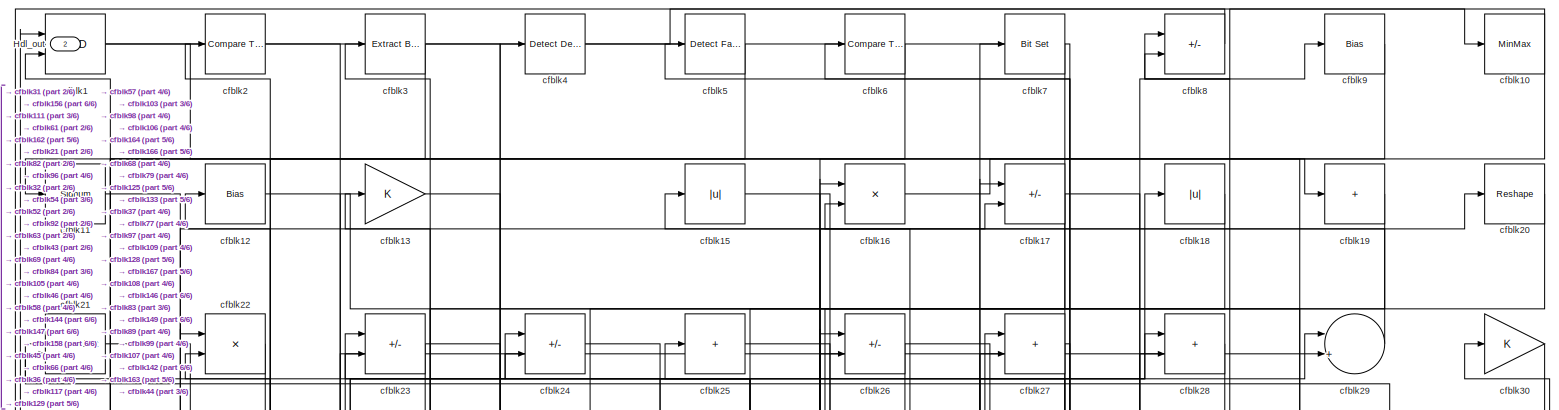
[diagram: root canvas - part 1/6, full width, top band]
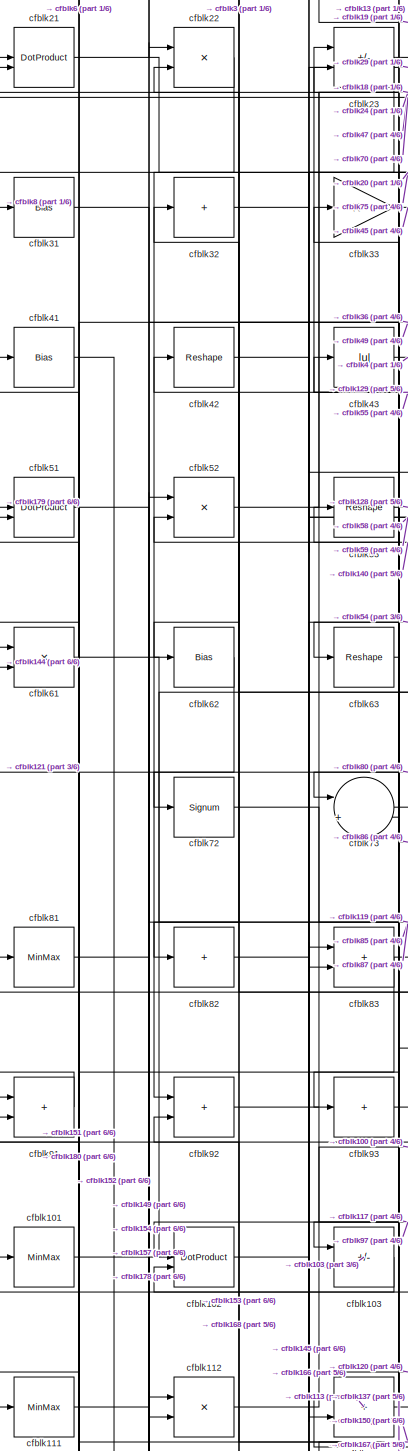
[diagram: root canvas - part 2/6, middle left region]
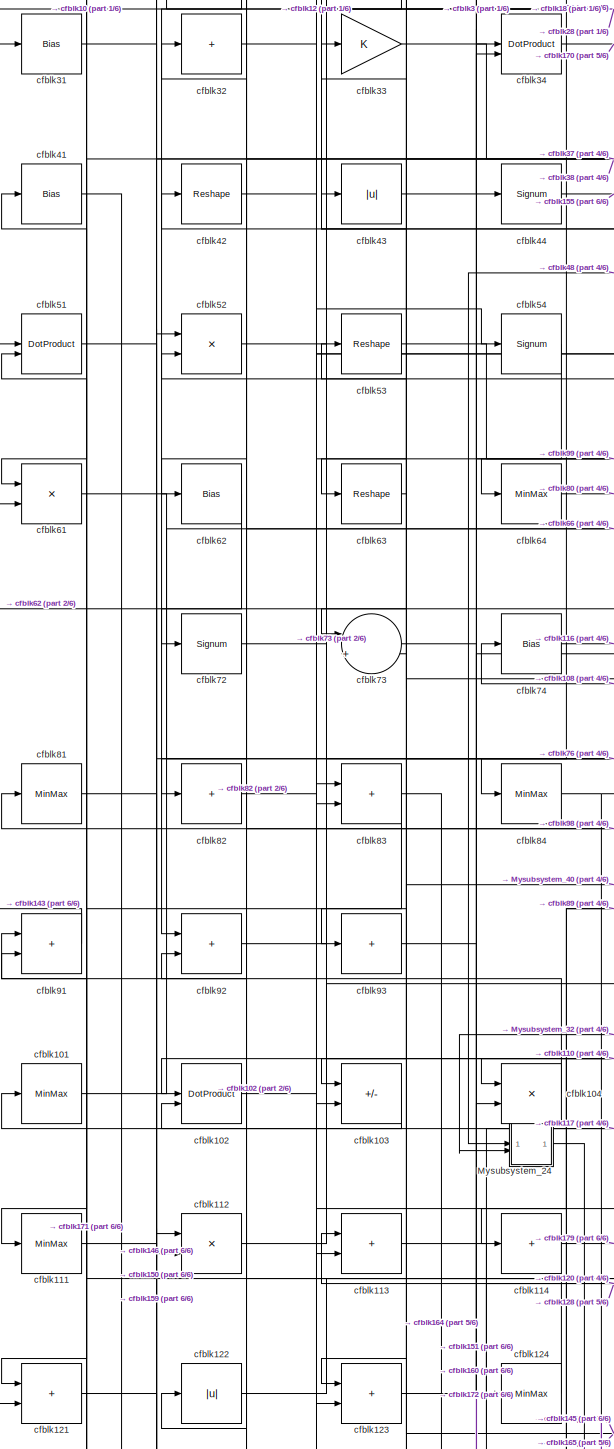
[diagram: root canvas - part 3/6, middle left region]
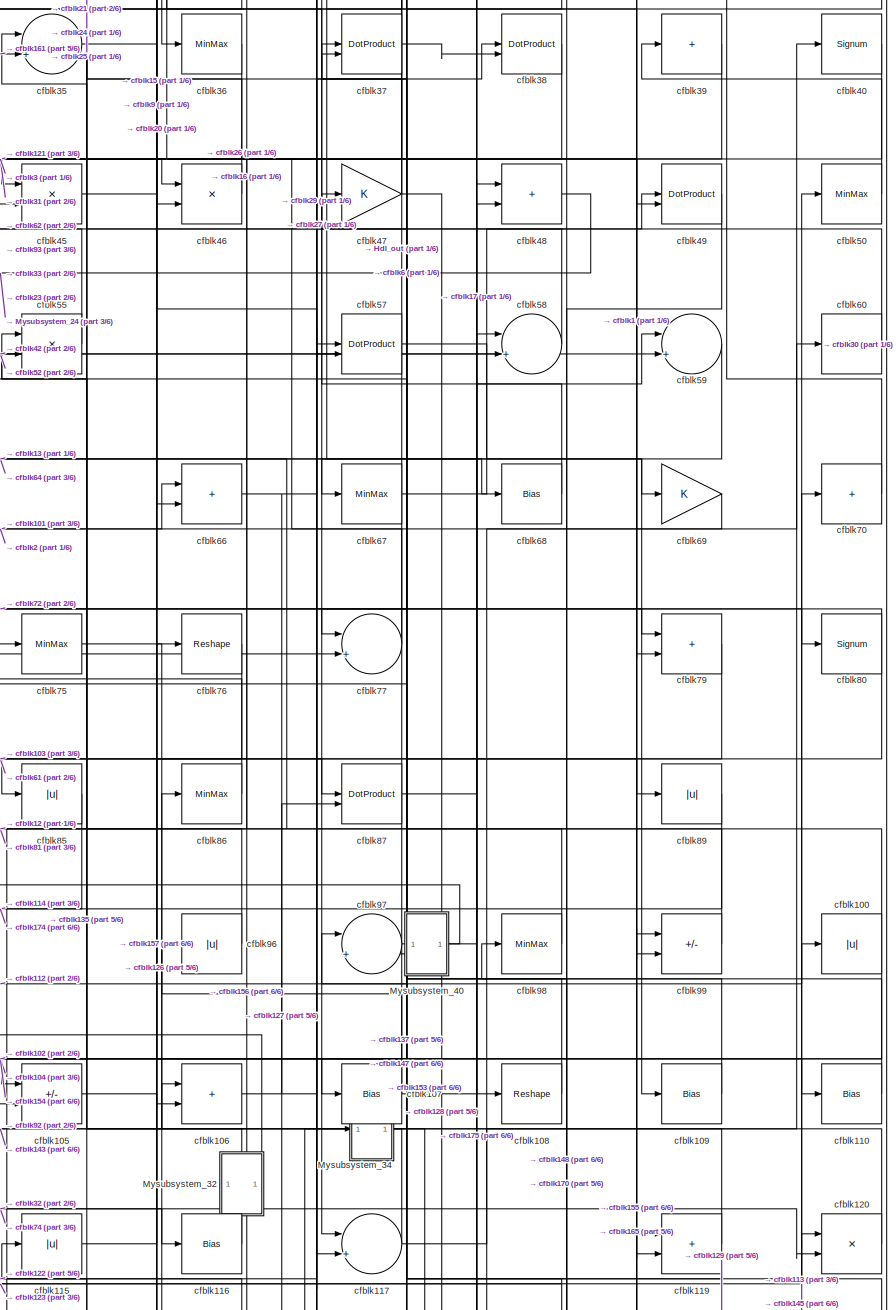
[diagram: root canvas - part 4/6, middle right region]
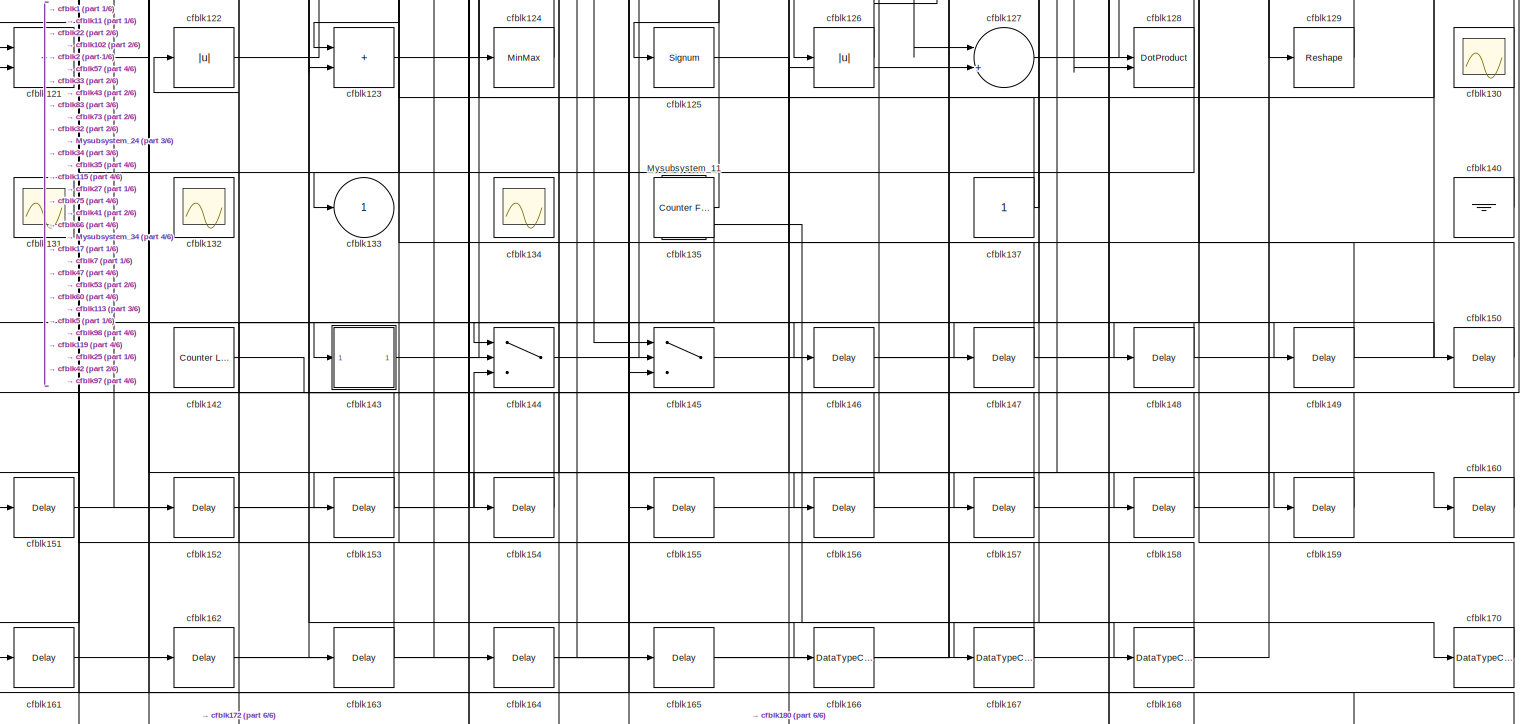
[diagram: root canvas - part 5/6, full width, bottom band]
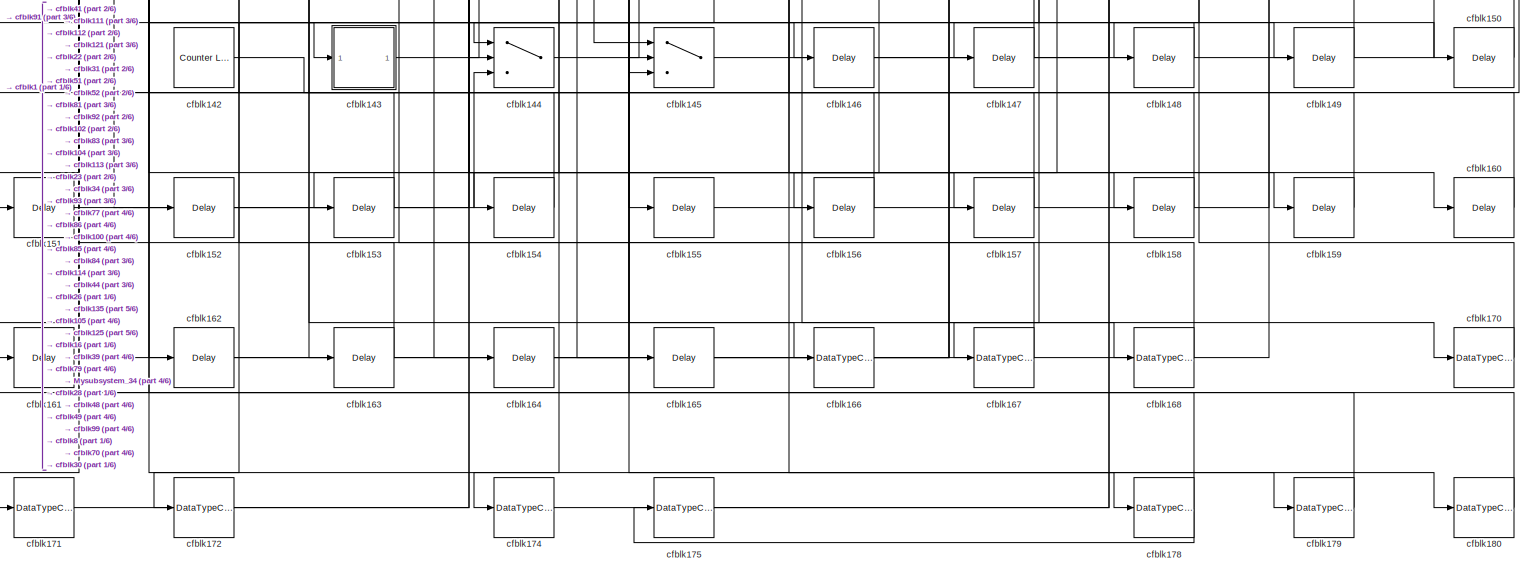
[diagram: root canvas - part 6/6, full width, bottom band]
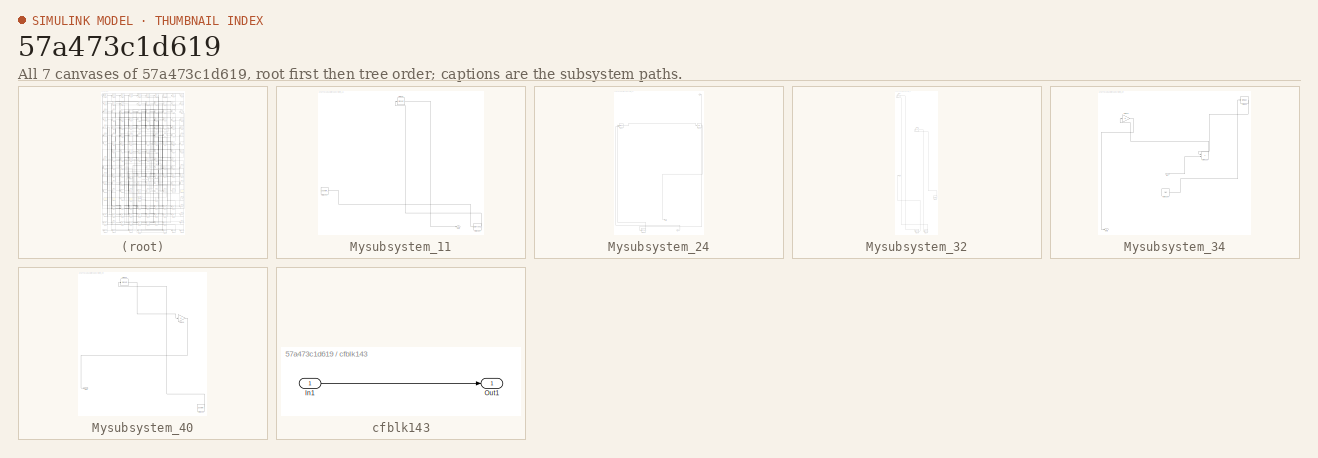
[diagram: thumbnail index - all 7 canvases of the model, root first then tree order]
MODEL slx_57a473c1d619
KIND model
CONFIG AbsTol = auto
CONFIG EnableMultiTasking = off
CONFIG FixedStep = auto
CONFIG MaxStep = auto
CONFIG MinStep = auto
CONFIG RelTol = 1e-3
CONFIG SampleTimeConstraint = Unconstrained
CONFIG SolverName = VariableStepAuto
CONFIG StartTime = 0.0
CONFIG StopTime = 10.0
BLOCK [Outport] Hdl_out
  OutDataTypeStr = uint8
  Port = 2
BLOCK [SubSystem] Mysubsystem_11
  RTWFcnName = Mysubsystem_11
  RTWFcnNameOpts = User specified
  RTWFileNameOpts = Use function name
  RTWSystemCode = Reusable function
  TreatAsAtomicUnit = on
BLOCK [Outport] Mysubsystem_11/Out1
BLOCK [Reference] Mysubsystem_11/cfblk141  REF=hdlsllib/Sources/Counter
Free-Running
  SourceBlock = hdlsllib/Sources/Counter\nFree-Running
  SourceType = Counter Free-Running
BLOCK [DataTypeConversion] Mysubsystem_11/cfblk169
  OutDataTypeStr = uint8
  RndMeth = Floor
  SaturateOnIntegerOverflow = off
BLOCK [Signum] Mysubsystem_11/cfblk95
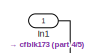
[diagram: Mysubsystem_24 - part 1/5, top right region]
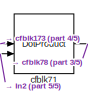
[diagram: Mysubsystem_24 - part 2/5, top left region]
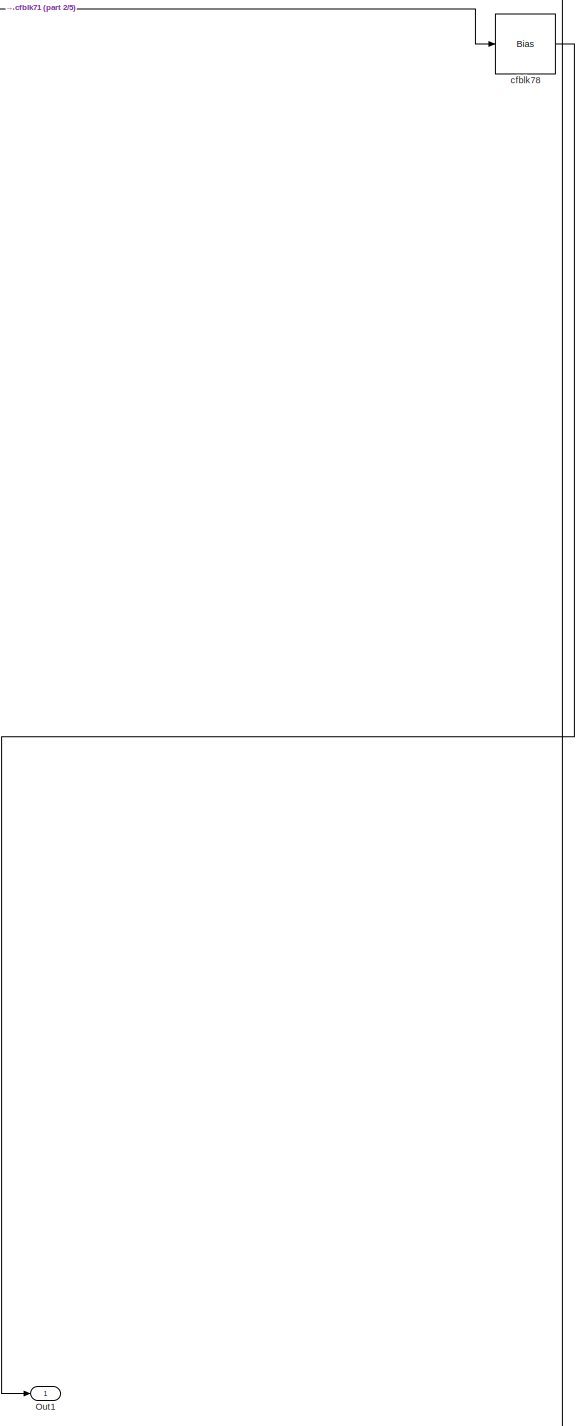
[diagram: Mysubsystem_24 - part 3/5, middle right region]
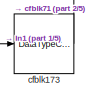
[diagram: Mysubsystem_24 - part 4/5, bottom left region]
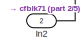
[diagram: Mysubsystem_24 - part 5/5, bottom right region]
BLOCK [SubSystem] Mysubsystem_24
  RTWFcnName = Mysubsystem_24
  RTWFcnNameOpts = User specified
  RTWFileNameOpts = Use function name
  RTWSystemCode = Reusable function
  TreatAsAtomicUnit = on
BLOCK [Inport] Mysubsystem_24/In1
BLOCK [Inport] Mysubsystem_24/In2
  Port = 2
BLOCK [Outport] Mysubsystem_24/Out1
BLOCK [DataTypeConversion] Mysubsystem_24/cfblk173
  OutDataTypeStr = uint8
  RndMeth = Floor
  SaturateOnIntegerOverflow = off
BLOCK [DotProduct] Mysubsystem_24/cfblk71
  OutDataTypeStr = Inherit: Inherit via internal rule
BLOCK [Bias] Mysubsystem_24/cfblk78
  Bias = 0.0
  SaturateOnIntegerOverflow = off
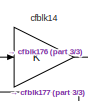
[diagram: Mysubsystem_32 - part 1/3, top left region]
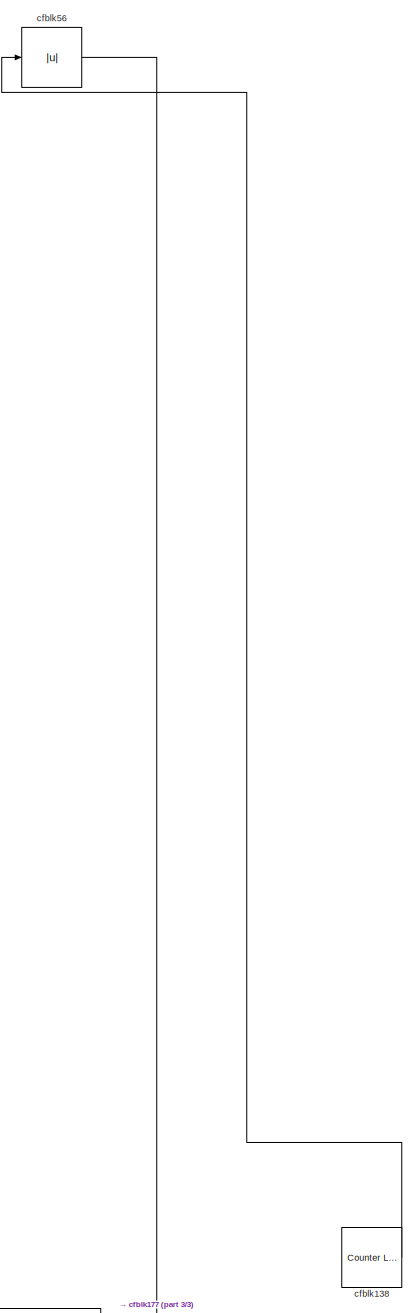
[diagram: Mysubsystem_32 - part 2/3, middle right region]
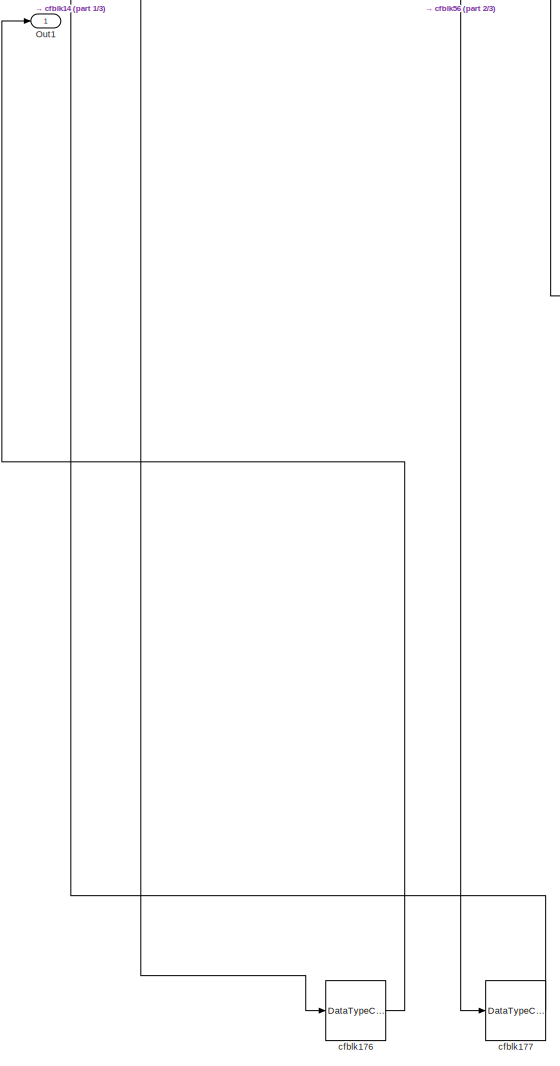
[diagram: Mysubsystem_32 - part 3/3, full width, bottom band]
BLOCK [SubSystem] Mysubsystem_32
  RTWFcnName = Mysubsystem_32
  RTWFcnNameOpts = User specified
  RTWFileNameOpts = Use function name
  RTWSystemCode = Reusable function
  TreatAsAtomicUnit = on
BLOCK [Outport] Mysubsystem_32/Out1
BLOCK [Reference] Mysubsystem_32/cfblk138  REF=hdlsllib/Sources/Counter
Limited
  SourceBlock = hdlsllib/Sources/Counter\nLimited
  SourceType = Counter Limited
BLOCK [Gain] Mysubsystem_32/cfblk14
BLOCK [DataTypeConversion] Mysubsystem_32/cfblk176
  OutDataTypeStr = uint8
  RndMeth = Floor
  SaturateOnIntegerOverflow = off
BLOCK [DataTypeConversion] Mysubsystem_32/cfblk177
  OutDataTypeStr = uint8
  RndMeth = Floor
  SaturateOnIntegerOverflow = off
BLOCK [Abs] Mysubsystem_32/cfblk56
  SaturateOnIntegerOverflow = off
BLOCK [SubSystem] Mysubsystem_34
  RTWFcnName = Mysubsystem_34
  RTWFcnNameOpts = User specified
  RTWFileNameOpts = Use function name
  RTWSystemCode = Reusable function
  TreatAsAtomicUnit = on
BLOCK [Inport] Mysubsystem_34/In1
BLOCK [Outport] Mysubsystem_34/Out1
BLOCK [Sum] Mysubsystem_34/cfblk118
  IconShape = rectangular
BLOCK [Ground] Mysubsystem_34/cfblk136
BLOCK [MinMax] Mysubsystem_34/cfblk90
BLOCK [Gain] Mysubsystem_34/cfblk94
BLOCK [SubSystem] Mysubsystem_40
  RTWFcnName = Mysubsystem_40
  RTWFcnNameOpts = User specified
  RTWFileNameOpts = Use function name
  RTWSystemCode = Reusable function
  TreatAsAtomicUnit = on
BLOCK [Outport] Mysubsystem_40/Out1
BLOCK [Reference] Mysubsystem_40/cfblk139  REF=hdlsllib/Sources/Counter
Free-Running
  SourceBlock = hdlsllib/Sources/Counter\nFree-Running
  SourceType = Counter Free-Running
BLOCK [Signum] Mysubsystem_40/cfblk65
BLOCK [Gain] Mysubsystem_40/cfblk88
BLOCK [Logic] cfblk1
  AllPortsSameDT = off
  OutDataTypeStr = boolean
BLOCK [MinMax] cfblk10
  OutDataTypeStr = uint8
BLOCK [Abs] cfblk100
  OutDataTypeStr = uint8
  SaturateOnIntegerOverflow = off
BLOCK [MinMax] cfblk101
  OutDataTypeStr = uint8
BLOCK [DotProduct] cfblk102
  OutDataTypeStr = uint8
BLOCK [Sum] cfblk103
  IconShape = rectangular
  Inputs = +-
  OutDataTypeStr = uint8
BLOCK [Product] cfblk104
  Inputs = */
  OutDataTypeStr = uint8
  RndMeth = Zero
  SaturateOnIntegerOverflow = on
BLOCK [Sum] cfblk105
  IconShape = rectangular
  Inputs = +-
  OutDataTypeStr = uint8
BLOCK [Sum] cfblk106
  IconShape = rectangular
  OutDataTypeStr = uint8
BLOCK [Bias] cfblk107
  Bias = 0.0
  SaturateOnIntegerOverflow = off
BLOCK [Reshape] cfblk108
BLOCK [Bias] cfblk109
  Bias = 0.0
  SaturateOnIntegerOverflow = off
BLOCK [Signum] cfblk11
BLOCK [Bias] cfblk110
  Bias = 0.0
  SaturateOnIntegerOverflow = off
BLOCK [MinMax] cfblk111
  OutDataTypeStr = uint8
BLOCK [Product] cfblk112
  Inputs = */
  OutDataTypeStr = uint8
  RndMeth = Zero
  SaturateOnIntegerOverflow = on
BLOCK [Sum] cfblk113
  IconShape = rectangular
  OutDataTypeStr = uint8
BLOCK [Sum] cfblk114
  IconShape = rectangular
  Inputs = +
  OutDataTypeStr = uint8
BLOCK [Abs] cfblk115
  OutDataTypeStr = uint8
  SaturateOnIntegerOverflow = off
BLOCK [Bias] cfblk116
  Bias = 0.0
  SaturateOnIntegerOverflow = off
BLOCK [Sum] cfblk117
  Inputs = |++
  OutDataTypeStr = uint8
BLOCK [Sum] cfblk119
  IconShape = rectangular
  OutDataTypeStr = uint8
BLOCK [Bias] cfblk12
  Bias = 0.0
  SaturateOnIntegerOverflow = off
BLOCK [Product] cfblk120
  Inputs = */
  OutDataTypeStr = uint8
  RndMeth = Zero
  SaturateOnIntegerOverflow = on
BLOCK [Sum] cfblk121
  IconShape = rectangular
  OutDataTypeStr = uint8
BLOCK [Abs] cfblk122
  OutDataTypeStr = uint8
  SaturateOnIntegerOverflow = off
BLOCK [Sum] cfblk123
  IconShape = rectangular
  OutDataTypeStr = uint8
BLOCK [MinMax] cfblk124
  OutDataTypeStr = uint8
BLOCK [Signum] cfblk125
BLOCK [Abs] cfblk126
  OutDataTypeStr = uint8
  SaturateOnIntegerOverflow = off
BLOCK [Sum] cfblk127
  Inputs = |++
  OutDataTypeStr = uint8
BLOCK [DotProduct] cfblk128
  OutDataTypeStr = uint8
BLOCK [Reshape] cfblk129
BLOCK [Gain] cfblk13
  OutDataTypeStr = uint8
BLOCK [Scope] cfblk130
  Floating = on
  NumInputPorts = 1
  ScopeSpecificationString = Simulink.scopes.TimeScopeBlockCfg('CurrentConfiguration', extmgr.ConfigurationSet(extmgr.Configuration('Core','General UI',true,'FigureColor',[0.156862745098039 0.156862745098039 0.156862745098039]),extmgr.Configuration('Core','Source UI',true),extmgr.Configuration('Sources','WiredSimulink',true,'DataLoggingVariableName','ScopeData1','DataLoggingSaveFormat','StructureWithTime','DataLoggingLimitDat...<+2713ch>  <repeated x4 — deduplicated; at blocks: cfblk130, cfblk131, cfblk132, cfblk134>
BLOCK [Scope] cfblk131
  Floating = on
  NumInputPorts = 1
BLOCK [Scope] cfblk132
  Floating = on
  NumInputPorts = 1
BLOCK [Outport] cfblk133
  OutDataTypeStr = uint8
  VectorParamsAs1DForOutWhenUnconnected = off
BLOCK [Scope] cfblk134
  Floating = on
  NumInputPorts = 1
BLOCK [Reference] cfblk135  REF=hdlsllib/Sources/Counter
Free-Running
  SourceBlock = hdlsllib/Sources/Counter\nFree-Running
  SourceType = Counter Free-Running
BLOCK [Constant] cfblk137
  OutDataTypeStr = uint8
  SampleTime = -1
BLOCK [Ground] cfblk140
BLOCK [Reference] cfblk142  REF=hdlsllib/Sources/Counter
Limited
  SourceBlock = hdlsllib/Sources/Counter\nLimited
  SourceType = Counter Limited
BLOCK [SubSystem] cfblk143
  LibrarySourceBlock = hdlsllib/Ports &\nSubsystems/Subsystem
BLOCK [Inport] cfblk143/In1
BLOCK [Outport] cfblk143/Out1
BLOCK [Switch] cfblk144
  InputSameDT = off
  OutDataTypeStr = uint8
  SaturateOnIntegerOverflow = off
BLOCK [Switch] cfblk145
  InputSameDT = off
  OutDataTypeStr = uint8
  SaturateOnIntegerOverflow = off
BLOCK [Delay] cfblk146
  InputPortMap = u0
  SampleTime = 1
BLOCK [Delay] cfblk147
  InputPortMap = u0
  SampleTime = 1
BLOCK [Delay] cfblk148
  InputPortMap = u0
  SampleTime = 1
BLOCK [Delay] cfblk149
  InputPortMap = u0
  SampleTime = 1
BLOCK [Abs] cfblk15
  OutDataTypeStr = uint8
  SaturateOnIntegerOverflow = off
BLOCK [Delay] cfblk150
  InputPortMap = u0
  SampleTime = 1
BLOCK [Delay] cfblk151
  InputPortMap = u0
  SampleTime = 1
BLOCK [Delay] cfblk152
  InputPortMap = u0
  SampleTime = 1
BLOCK [Delay] cfblk153
  InputPortMap = u0
  SampleTime = 1
BLOCK [Delay] cfblk154
  InputPortMap = u0
  SampleTime = 1
BLOCK [Delay] cfblk155
  InputPortMap = u0
  SampleTime = 1
BLOCK [Delay] cfblk156
  InputPortMap = u0
  SampleTime = 1
BLOCK [Delay] cfblk157
  InputPortMap = u0
  SampleTime = 1
BLOCK [Delay] cfblk158
  InputPortMap = u0
  SampleTime = 1
BLOCK [Delay] cfblk159
  InputPortMap = u0
  SampleTime = 1
BLOCK [Product] cfblk16
  Inputs = */
  OutDataTypeStr = uint8
  RndMeth = Zero
  SaturateOnIntegerOverflow = on
BLOCK [Delay] cfblk160
  InputPortMap = u0
  SampleTime = 1
BLOCK [Delay] cfblk161
  InputPortMap = u0
  SampleTime = 1
BLOCK [Delay] cfblk162
  InputPortMap = u0
  SampleTime = 1
BLOCK [Delay] cfblk163
  InputPortMap = u0
  SampleTime = 1
BLOCK [Delay] cfblk164
  InputPortMap = u0
  SampleTime = 1
BLOCK [Delay] cfblk165
  InputPortMap = u0
  SampleTime = 1
BLOCK [DataTypeConversion] cfblk166
  OutDataTypeStr = uint8
  RndMeth = Floor
  SaturateOnIntegerOverflow = off
BLOCK [DataTypeConversion] cfblk167
  OutDataTypeStr = uint8
  RndMeth = Floor
  SaturateOnIntegerOverflow = off
BLOCK [DataTypeConversion] cfblk168
  OutDataTypeStr = uint8
  RndMeth = Floor
  SaturateOnIntegerOverflow = off
BLOCK [Sum] cfblk17
  IconShape = rectangular
  Inputs = +-
  OutDataTypeStr = uint8
BLOCK [DataTypeConversion] cfblk170
  OutDataTypeStr = uint8
  RndMeth = Floor
  SaturateOnIntegerOverflow = off
BLOCK [DataTypeConversion] cfblk171
  OutDataTypeStr = uint8
  RndMeth = Floor
  SaturateOnIntegerOverflow = off
BLOCK [DataTypeConversion] cfblk172
  OutDataTypeStr = uint8
  RndMeth = Floor
  SaturateOnIntegerOverflow = off
BLOCK [DataTypeConversion] cfblk174
  OutDataTypeStr = uint8
  RndMeth = Floor
  SaturateOnIntegerOverflow = off
BLOCK [DataTypeConversion] cfblk175
  OutDataTypeStr = uint8
  RndMeth = Floor
  SaturateOnIntegerOverflow = off
BLOCK [DataTypeConversion] cfblk178
  OutDataTypeStr = uint8
  RndMeth = Floor
  SaturateOnIntegerOverflow = off
BLOCK [DataTypeConversion] cfblk179
  OutDataTypeStr = uint8
  RndMeth = Floor
  SaturateOnIntegerOverflow = off
BLOCK [Abs] cfblk18
  OutDataTypeStr = uint8
  SaturateOnIntegerOverflow = off
BLOCK [DataTypeConversion] cfblk180
  OutDataTypeStr = uint8
  RndMeth = Floor
  SaturateOnIntegerOverflow = off
BLOCK [Sum] cfblk19
  IconShape = rectangular
  Inputs = +
  OutDataTypeStr = uint8
BLOCK [Reference] cfblk2  REF=hdlsllib/Logic and Bit
Operations/Compare
To Zero
  SourceBlock = hdlsllib/Logic and Bit\nOperations/Compare\nTo Zero
  SourceType = Compare To Zero
BLOCK [Reshape] cfblk20
BLOCK [DotProduct] cfblk21
  OutDataTypeStr = uint8
BLOCK [Product] cfblk22
  Inputs = */
  OutDataTypeStr = uint8
  RndMeth = Zero
  SaturateOnIntegerOverflow = on
BLOCK [Sum] cfblk23
  IconShape = rectangular
  Inputs = +-
  OutDataTypeStr = uint8
BLOCK [Sum] cfblk24
  IconShape = rectangular
  Inputs = +-
  OutDataTypeStr = uint8
BLOCK [Sum] cfblk25
  IconShape = rectangular
  Inputs = +
  OutDataTypeStr = uint8
BLOCK [Sum] cfblk26
  IconShape = rectangular
  Inputs = +-
  OutDataTypeStr = uint8
BLOCK [Sum] cfblk27
  IconShape = rectangular
  OutDataTypeStr = uint8
BLOCK [Sum] cfblk28
  IconShape = rectangular
  OutDataTypeStr = uint8
BLOCK [Sum] cfblk29
  Inputs = |++
  OutDataTypeStr = uint8
BLOCK [Reference] cfblk3  REF=simulink/Logic and Bit
Operations/Extract Bits
  LibrarySourceBlock = hdlsllib/Logic and Bit\nOperations/Extract Bits
  SourceBlock = simulink/Logic and Bit\nOperations/Extract Bits
  SourceType = Extract Bits
BLOCK [Gain] cfblk30
  OutDataTypeStr = uint8
BLOCK [Bias] cfblk31
  Bias = 0.0
  SaturateOnIntegerOverflow = off
BLOCK [Sum] cfblk32
  IconShape = rectangular
  Inputs = +
  OutDataTypeStr = uint8
BLOCK [Gain] cfblk33
  OutDataTypeStr = uint8
BLOCK [DotProduct] cfblk34
  OutDataTypeStr = uint8
BLOCK [Sum] cfblk35
  Inputs = |++
  OutDataTypeStr = uint8
BLOCK [MinMax] cfblk36
  OutDataTypeStr = uint8
BLOCK [DotProduct] cfblk37
  OutDataTypeStr = uint8
BLOCK [DotProduct] cfblk38
  OutDataTypeStr = uint8
BLOCK [Sum] cfblk39
  IconShape = rectangular
  Inputs = +
  OutDataTypeStr = uint8
BLOCK [Reference] cfblk4  REF=simulink/Logic and Bit
Operations/Detect
Decrease
  LibrarySourceBlock = hdlsllib/Logic and Bit\nOperations/Detect\nDecrease
  SourceBlock = simulink/Logic and Bit\nOperations/Detect\nDecrease
  SourceType = Detect Decrease
BLOCK [Signum] cfblk40
BLOCK [Bias] cfblk41
  Bias = 0.0
  SaturateOnIntegerOverflow = off
BLOCK [Reshape] cfblk42
BLOCK [Abs] cfblk43
  OutDataTypeStr = uint8
  SaturateOnIntegerOverflow = off
BLOCK [Signum] cfblk44
BLOCK [Product] cfblk45
  Inputs = */
  OutDataTypeStr = uint8
  RndMeth = Zero
  SaturateOnIntegerOverflow = on
BLOCK [Product] cfblk46
  Inputs = */
  OutDataTypeStr = uint8
  RndMeth = Zero
  SaturateOnIntegerOverflow = on
BLOCK [Gain] cfblk47
  OutDataTypeStr = uint8
BLOCK [Sum] cfblk48
  IconShape = rectangular
  OutDataTypeStr = uint8
BLOCK [DotProduct] cfblk49
  OutDataTypeStr = uint8
BLOCK [Reference] cfblk5  REF=hdlsllib/Logic and Bit
Operations/Detect Fall
Nonpositive
  SourceBlock = hdlsllib/Logic and Bit\nOperations/Detect Fall\nNonpositive
  SourceType = Detect Fall Nonpositive
BLOCK [MinMax] cfblk50
  OutDataTypeStr = uint8
BLOCK [DotProduct] cfblk51
  OutDataTypeStr = uint8
BLOCK [Product] cfblk52
  Inputs = */
  OutDataTypeStr = uint8
  RndMeth = Zero
  SaturateOnIntegerOverflow = on
BLOCK [Reshape] cfblk53
BLOCK [Signum] cfblk54
BLOCK [Product] cfblk55
  Inputs = */
  OutDataTypeStr = uint8
  RndMeth = Zero
  SaturateOnIntegerOverflow = on
BLOCK [DotProduct] cfblk57
  OutDataTypeStr = uint8
BLOCK [Sum] cfblk58
  Inputs = |++
  OutDataTypeStr = uint8
BLOCK [Sum] cfblk59
  Inputs = |++
  OutDataTypeStr = uint8
BLOCK [Reference] cfblk6  REF=hdlsllib/Logic and Bit
Operations/Compare
To Zero
  SourceBlock = hdlsllib/Logic and Bit\nOperations/Compare\nTo Zero
  SourceType = Compare To Zero
BLOCK [Bias] cfblk60
  Bias = 0.0
  SaturateOnIntegerOverflow = off
BLOCK [Product] cfblk61
  Inputs = */
  OutDataTypeStr = uint8
  RndMeth = Zero
  SaturateOnIntegerOverflow = on
BLOCK [Bias] cfblk62
  Bias = 0.0
  SaturateOnIntegerOverflow = off
BLOCK [Reshape] cfblk63
BLOCK [MinMax] cfblk64
  OutDataTypeStr = uint8
BLOCK [Sum] cfblk66
  IconShape = rectangular
  OutDataTypeStr = uint8
BLOCK [MinMax] cfblk67
  OutDataTypeStr = uint8
BLOCK [Bias] cfblk68
  Bias = 0.0
  SaturateOnIntegerOverflow = off
BLOCK [Gain] cfblk69
  OutDataTypeStr = uint8
BLOCK [Reference] cfblk7  REF=simulink/Logic and Bit
Operations/Bit Set
  LibrarySourceBlock = hdlsllib/Logic and Bit\nOperations/Bit Set
  SourceBlock = simulink/Logic and Bit\nOperations/Bit Set
  SourceType = Bit Set
BLOCK [Sum] cfblk70
  IconShape = rectangular
  Inputs = +
  OutDataTypeStr = uint8
BLOCK [Signum] cfblk72
BLOCK [Sum] cfblk73
  Inputs = |++
  OutDataTypeStr = uint8
BLOCK [Bias] cfblk74
  Bias = 0.0
  SaturateOnIntegerOverflow = off
BLOCK [MinMax] cfblk75
  OutDataTypeStr = uint8
BLOCK [Reshape] cfblk76
BLOCK [Sum] cfblk77
  Inputs = |++
  OutDataTypeStr = uint8
BLOCK [Sum] cfblk79
  IconShape = rectangular
  OutDataTypeStr = uint8
BLOCK [Sum] cfblk8
  IconShape = rectangular
  Inputs = +-
  OutDataTypeStr = uint8
BLOCK [Signum] cfblk80
BLOCK [MinMax] cfblk81
  OutDataTypeStr = uint8
BLOCK [Sum] cfblk82
  IconShape = rectangular
  Inputs = +
  OutDataTypeStr = uint8
BLOCK [Sum] cfblk83
  IconShape = rectangular
  OutDataTypeStr = uint8
BLOCK [MinMax] cfblk84
  OutDataTypeStr = uint8
BLOCK [Abs] cfblk85
  OutDataTypeStr = uint8
  SaturateOnIntegerOverflow = off
BLOCK [MinMax] cfblk86
  OutDataTypeStr = uint8
BLOCK [DotProduct] cfblk87
  OutDataTypeStr = uint8
BLOCK [Abs] cfblk89
  OutDataTypeStr = uint8
  SaturateOnIntegerOverflow = off
BLOCK [Bias] cfblk9
  Bias = 0.0
  SaturateOnIntegerOverflow = off
BLOCK [Sum] cfblk91
  IconShape = rectangular
  OutDataTypeStr = uint8
BLOCK [Sum] cfblk92
  IconShape = rectangular
  OutDataTypeStr = uint8
BLOCK [Sum] cfblk93
  IconShape = rectangular
  Inputs = +
  OutDataTypeStr = uint8
BLOCK [Abs] cfblk96
  OutDataTypeStr = uint8
  SaturateOnIntegerOverflow = off
BLOCK [Sum] cfblk97
  Inputs = |++
  OutDataTypeStr = uint8
BLOCK [MinMax] cfblk98
  OutDataTypeStr = uint8
BLOCK [Sum] cfblk99
  IconShape = rectangular
  Inputs = +-
  OutDataTypeStr = uint8
LINE Mysubsystem_11/cfblk141:1 -> Mysubsystem_11/cfblk169:1
LINE Mysubsystem_11/cfblk169:1 -> Mysubsystem_11/cfblk95:1
LINE Mysubsystem_11/cfblk95:1 -> Mysubsystem_11/Out1:1
LINE Mysubsystem_11:1 -> cfblk168:1
LINE Mysubsystem_24/In1:1 -> Mysubsystem_24/cfblk173:1
LINE Mysubsystem_24/In2:1 -> Mysubsystem_24/cfblk71:2
LINE Mysubsystem_24/cfblk173:1 -> Mysubsystem_24/cfblk71:1
LINE Mysubsystem_24/cfblk71:1 -> Mysubsystem_24/cfblk78:1
LINE Mysubsystem_24/cfblk78:1 -> Mysubsystem_24/Out1:1
LINE Mysubsystem_24:1 -> cfblk165:1
LINE Mysubsystem_32/cfblk138:1 -> Mysubsystem_32/cfblk56:1
LINE Mysubsystem_32/cfblk14:1 -> Mysubsystem_32/cfblk176:1
LINE Mysubsystem_32/cfblk176:1 -> Mysubsystem_32/Out1:1
LINE Mysubsystem_32/cfblk177:1 -> Mysubsystem_32/cfblk14:1
LINE Mysubsystem_32/cfblk56:1 -> Mysubsystem_32/cfblk177:1
LINE Mysubsystem_32:1 -> Mysubsystem_24:2
LINE Mysubsystem_34/In1:1 -> Mysubsystem_34/cfblk118:2
LINE Mysubsystem_34/cfblk118:1 -> Mysubsystem_34/cfblk94:1
LINE Mysubsystem_34/cfblk136:1 -> Mysubsystem_34/cfblk90:1
LINE Mysubsystem_34/cfblk90:1 -> Mysubsystem_34/cfblk118:1
LINE Mysubsystem_34/cfblk94:1 -> Mysubsystem_34/Out1:1
LINE Mysubsystem_34:1 -> cfblk153:1
LINE Mysubsystem_40/cfblk139:1 -> Mysubsystem_40/cfblk65:1
LINE Mysubsystem_40/cfblk65:1 -> Mysubsystem_40/cfblk88:1
LINE Mysubsystem_40/cfblk88:1 -> Mysubsystem_40/Out1:1
LINE Mysubsystem_40:1 -> cfblk123:1
NET cfblk100:1 -> cfblk154:1, cfblk37:1
LINE cfblk101:1 -> cfblk66:1
NET cfblk102:1 -> cfblk145:3, cfblk166:1
LINE cfblk103:1 -> cfblk102:2
LINE cfblk104:1 -> cfblk91:1
LINE cfblk105:1 -> cfblk157:1
NET cfblk106:1 -> cfblk29:1, cfblk87:2
NET cfblk107:1 -> cfblk58:1, cfblk96:1
LINE cfblk108:1 -> cfblk74:1
LINE cfblk109:1 -> cfblk6:1
NET cfblk10:1 -> cfblk111:1, cfblk8:1
NET cfblk110:1 -> cfblk104:1, cfblk37:2
LINE cfblk111:1 -> cfblk150:1
LINE cfblk112:1 -> cfblk100:1
NET cfblk113:1 -> cfblk158:1, cfblk50:1
LINE cfblk114:1 -> cfblk179:1
LINE cfblk115:1 -> cfblk76:1
LINE cfblk116:1 -> cfblk35:1
NET cfblk117:1 -> cfblk101:1, cfblk40:1
LINE cfblk119:1 -> cfblk55:1
LINE cfblk11:1 -> cfblk162:1
LINE cfblk120:1 -> cfblk106:1
LINE cfblk121:1 -> cfblk159:1
LINE cfblk122:1 -> cfblk57:1
LINE cfblk123:1 -> cfblk120:1
LINE cfblk124:1 -> cfblk32:1
NET cfblk125:1 -> cfblk127:2, cfblk180:1
NET cfblk126:1 -> Mysubsystem_34:1, cfblk41:1
LINE cfblk127:1 -> cfblk60:1
NET cfblk128:1 -> cfblk113:1, cfblk161:1, cfblk5:1
NET cfblk129:1 -> cfblk42:1, cfblk97:2
NET cfblk12:1 -> cfblk54:1, cfblk89:1
NET cfblk135:1 -> cfblk115:1, cfblk172:1
NET cfblk137:1 -> cfblk33:1, cfblk97:1
LINE cfblk13:1 -> cfblk69:1
LINE cfblk140:1 -> cfblk53:1
LINE cfblk142:1 -> cfblk30:1
LINE cfblk143/In1:1 -> cfblk143/Out1:1
NET cfblk143:1 -> cfblk77:2, cfblk86:1
LINE cfblk144:1 -> cfblk26:2
LINE cfblk145:1 -> cfblk70:1
LINE cfblk146:1 -> cfblk28:2
LINE cfblk147:1 -> cfblk26:1
LINE cfblk148:1 -> cfblk144:1
LINE cfblk149:1 -> cfblk8:2
LINE cfblk150:1 -> cfblk23:2
LINE cfblk151:1 -> cfblk104:2
LINE cfblk152:1 -> cfblk144:3
LINE cfblk153:1 -> cfblk92:2
LINE cfblk154:1 -> cfblk52:1
LINE cfblk155:1 -> cfblk99:1
LINE cfblk156:1 -> cfblk1:1
LINE cfblk157:1 -> cfblk112:1
LINE cfblk158:1 -> cfblk16:1
LINE cfblk159:1 -> cfblk91:2
NET cfblk15:1 -> cfblk117:1, cfblk57:2
LINE cfblk160:1 -> cfblk83:1
LINE cfblk161:1 -> cfblk35:2
LINE cfblk162:1 -> cfblk17:1
LINE cfblk163:1 -> cfblk1:2
LINE cfblk164:1 -> cfblk27:2
LINE cfblk165:1 -> cfblk119:1
LINE cfblk166:1 -> cfblk7:1
LINE cfblk167:1 -> cfblk43:1
NET cfblk168:1 -> cfblk122:1, cfblk22:2
LINE cfblk16:1 -> cfblk19:1
LINE cfblk170:1 -> cfblk98:1
LINE cfblk171:1 -> cfblk34:1
LINE cfblk172:1 -> cfblk34:2
LINE cfblk174:1 -> cfblk48:1
LINE cfblk175:1 -> cfblk48:2
NET cfblk178:1 -> cfblk145:2, cfblk175:1, cfblk22:1
LINE cfblk179:1 -> cfblk51:1
NET cfblk17:1 -> cfblk105:1, cfblk108:1
LINE cfblk180:1 -> cfblk51:2
LINE cfblk18:1 -> cfblk84:1
LINE cfblk19:1 -> cfblk63:1
LINE cfblk1:1 -> cfblk99:2
LINE cfblk20:1 -> cfblk36:1
NET cfblk21:1 -> cfblk20:1, cfblk75:1
LINE cfblk22:1 -> cfblk92:1
NET cfblk23:1 -> cfblk144:2, cfblk61:2
LINE cfblk24:1 -> cfblk79:1
LINE cfblk25:1 -> cfblk129:1
NET cfblk26:1 -> cfblk103:2, cfblk68:1, cfblk79:2
NET cfblk27:1 -> cfblk125:1, cfblk133:1, cfblk77:1
LINE cfblk28:1 -> cfblk83:2
LINE cfblk29:1 -> cfblk15:1
LINE cfblk2:1 -> cfblk163:1
LINE cfblk30:1 -> cfblk107:1
NET cfblk31:1 -> cfblk149:1, cfblk49:2
NET cfblk32:1 -> cfblk120:2, cfblk29:2
NET cfblk33:1 -> cfblk45:2, cfblk73:1
LINE cfblk34:1 -> cfblk170:1
LINE cfblk35:1 -> cfblk110:1
LINE cfblk36:1 -> cfblk62:1
NET cfblk37:1 -> cfblk38:2, cfblk3:1, cfblk93:1
NET cfblk38:1 -> cfblk121:1, cfblk46:1
NET cfblk39:1 -> cfblk105:2, cfblk156:1
NET cfblk3:1 -> cfblk44:1, cfblk82:1
LINE cfblk40:1 -> cfblk46:2
NET cfblk41:1 -> cfblk151:1, cfblk152:1
LINE cfblk42:1 -> cfblk59:2
LINE cfblk43:1 -> cfblk4:1
LINE cfblk44:1 -> cfblk155:1
LINE cfblk45:1 -> cfblk17:2
LINE cfblk46:1 -> cfblk24:2
NET cfblk47:1 -> cfblk128:2, cfblk21:1
LINE cfblk48:1 -> Mysubsystem_24:1
LINE cfblk49:1 -> cfblk148:1
LINE cfblk4:1 -> cfblk10:1
LINE cfblk50:1 -> cfblk39:1
LINE cfblk51:1 -> cfblk178:1
NET cfblk52:1 -> cfblk24:1, cfblk58:2
LINE cfblk53:1 -> cfblk128:1
NET cfblk54:1 -> cfblk123:2, cfblk73:2
LINE cfblk55:1 -> cfblk23:1
LINE cfblk57:1 -> cfblk109:1
LINE cfblk58:1 -> cfblk25:1
LINE cfblk59:1 -> cfblk67:1
LINE cfblk5:1 -> cfblk11:1
LINE cfblk60:1 -> cfblk47:1
NET cfblk61:1 -> cfblk85:1, cfblk87:1
NET cfblk62:1 -> cfblk112:2, cfblk121:2
LINE cfblk63:1 -> cfblk13:1
LINE cfblk64:1 -> cfblk80:1
NET cfblk66:1 -> cfblk127:1, cfblk38:1
LINE cfblk67:1 -> cfblk49:1
LINE cfblk68:1 -> cfblk27:1
LINE cfblk69:1 -> cfblk45:1
LINE cfblk6:1 -> cfblk61:1
LINE cfblk70:1 -> cfblk21:2
LINE cfblk72:1 -> cfblk119:2
LINE cfblk73:1 -> cfblk124:1
LINE cfblk74:1 -> cfblk116:1
LINE cfblk75:1 -> cfblk126:1
LINE cfblk76:1 -> cfblk103:1
LINE cfblk77:1 -> cfblk2:1
LINE cfblk79:1 -> cfblk147:1
LINE cfblk7:1 -> cfblk167:1
NET cfblk80:1 -> cfblk106:2, cfblk72:1
LINE cfblk81:1 -> cfblk146:1
LINE cfblk82:1 -> cfblk113:2
NET cfblk83:1 -> cfblk164:1, cfblk171:1
NET cfblk84:1 -> cfblk145:1, cfblk28:1
LINE cfblk85:1 -> cfblk174:1
LINE cfblk86:1 -> cfblk52:2
LINE cfblk87:1 -> cfblk59:1
LINE cfblk89:1 -> cfblk114:1
LINE cfblk8:1 -> cfblk31:1
LINE cfblk91:1 -> cfblk143:1
NET cfblk92:1 -> cfblk117:2, cfblk18:1
LINE cfblk93:1 -> cfblk160:1
LINE cfblk96:1 -> cfblk12:1
NET cfblk97:1 -> Hdl_out:1, cfblk102:1, cfblk9:1
NET cfblk98:1 -> cfblk16:2, cfblk81:1
NET cfblk99:1 -> cfblk55:2, cfblk64:1
LINE cfblk9:1 -> cfblk66:2
note: NET lines group one-source signal fan-out (src -> all destinations, sorted); 1:1 wires keep LINE
